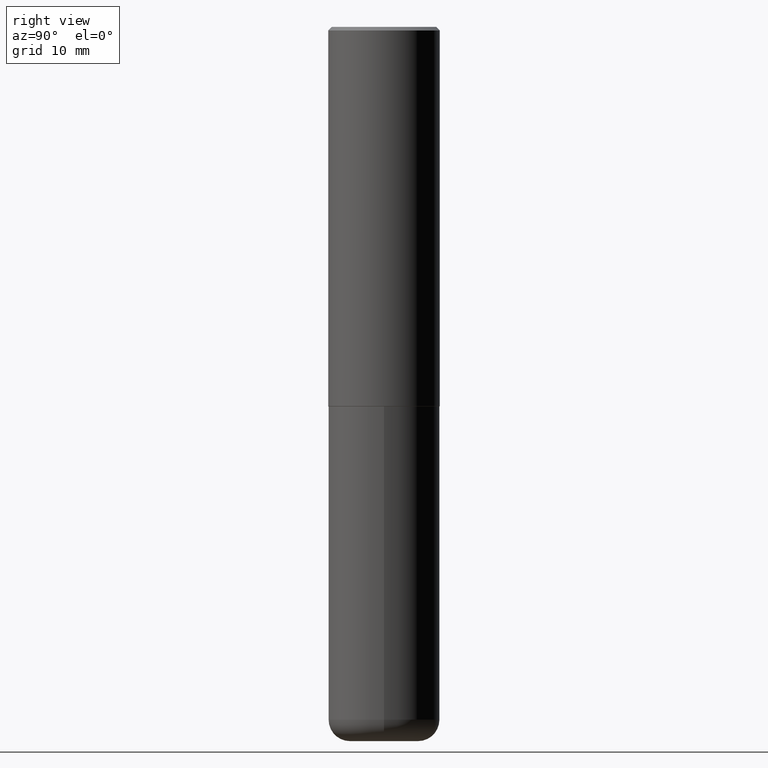
[diagram: clean part render]
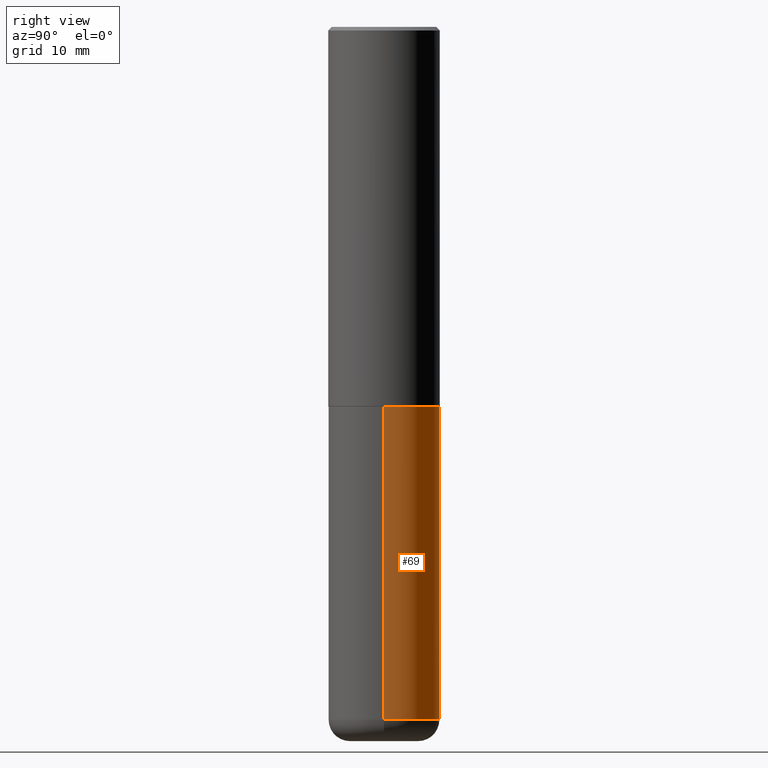
[diagram: same view with one face highlighted and labeled with its STEP entity id]
A machine part, right view. The second image highlights one B-rep face of the part: STEP entity #69.
In plain terms, the highlighted cylindrical surface (partial cylindrical patch) has radius 7.9375 mm, axis along (-0, 0, 1).
Its self-contained STEP definition (entity closure, byte-faithful):
#2 = CIRCLE ( 'NONE', #113, 0.3125000000000000000 ) ;
#43 = CARTESIAN_POINT ( 'NONE',  ( 0.3125000000000000555, -1.572912343148836404E-14, -3.880000000000000338 ) ) ;
#52 = VERTEX_POINT ( 'NONE', #43 ) ;
#60 = CIRCLE ( 'NONE', #272, 0.3125000000000000000 ) ;
#68 = CARTESIAN_POINT ( 'NONE',  ( 5.196621213143414147E-29, -7.419397845041682046E-15, -2.124999999999999556 ) ) ;
#69 = ADVANCED_FACE ( 'NONE', ( #370 ), #267, .T. ) ;
#74 = AXIS2_PLACEMENT_3D ( 'NONE', #200, #172, #292 ) ;
#76 = VERTEX_POINT ( 'NONE', #93 ) ;
#92 = DIRECTION ( 'NONE',  ( -2.445468806185136597E-29, 3.491481338843145583E-15, 1.000000000000000000 ) ) ;
#93 = CARTESIAN_POINT ( 'NONE',  ( -0.3125000000000000000, -8.262726670626231579E-15, -2.124999999999999556 ) ) ;
#106 = DIRECTION ( 'NONE',  ( -2.445468806185136597E-29, 3.491481338843145583E-15, 1.000000000000000000 ) ) ;
#113 = AXIS2_PLACEMENT_3D ( 'NONE', #399, #92, #386 ) ;
#114 = CARTESIAN_POINT ( 'NONE',  ( 0.3125000000000000000, -9.601573681818640393E-15, -2.124999999999999556 ) ) ;
#118 = EDGE_LOOP ( 'NONE', ( #213, #236, #214, #297 ) ) ;
#130 = CARTESIAN_POINT ( 'NONE',  ( -0.3125000000000000555, -1.132650154546109262E-14, -3.880000000000000338 ) ) ;
#148 = CARTESIAN_POINT ( 'NONE',  ( -0.3125000000000000000, 2.220446049250313081E-15, -1.537167215704658232E-29 ) ) ;
#153 = VECTOR ( 'NONE', #224, 39.37007874015748143 ) ;
#172 = DIRECTION ( 'NONE',  ( -2.445468806185136597E-29, 3.491481338843145583E-15, 1.000000000000000000 ) ) ;
#176 = EDGE_CURVE ( 'NONE', #211, #76, #205, .T. ) ;
#179 = VERTEX_POINT ( 'NONE', #114 ) ;
#194 = EDGE_CURVE ( 'NONE', #179, #76, #60, .T. ) ;
#200 = CARTESIAN_POINT ( 'NONE',  ( 0.000000000000000000, 0.000000000000000000, 0.000000000000000000 ) ) ;
#205 = LINE ( 'NONE', #148, #391 ) ;
#211 = VERTEX_POINT ( 'NONE', #130 ) ;
#213 = ORIENTED_EDGE ( 'NONE', *, *, #334, .T. ) ;
#214 = ORIENTED_EDGE ( 'NONE', *, *, #194, .F. ) ;
#224 = DIRECTION ( 'NONE',  ( -2.445468806185136877E-29, 3.491481338843145188E-15, 1.000000000000000000 ) ) ;
#236 = ORIENTED_EDGE ( 'NONE', *, *, #176, .T. ) ;
#267 = CYLINDRICAL_SURFACE ( 'NONE', #74, 0.3125000000000000000 ) ;
#272 = AXIS2_PLACEMENT_3D ( 'NONE', #68, #106, #281 ) ;
#281 = DIRECTION ( 'NONE',  ( 1.000000000000000000, -6.982962677686265133E-15, 0.000000000000000000 ) ) ;
#292 = DIRECTION ( 'NONE',  ( 1.000000000000000000, -6.982962677686266711E-15, 4.876176775795936353E-29 ) ) ;
#297 = ORIENTED_EDGE ( 'NONE', *, *, #417, .F. ) ;
#334 = EDGE_CURVE ( 'NONE', #52, #211, #2, .T. ) ;
#352 = DIRECTION ( 'NONE',  ( -2.445468806185136877E-29, 3.491481338843145188E-15, 1.000000000000000000 ) ) ;
#370 = FACE_OUTER_BOUND ( 'NONE', #118, .T. ) ;
#386 = DIRECTION ( 'NONE',  ( 1.000000000000000000, -6.982962677686269077E-15, 0.000000000000000000 ) ) ;
#388 = LINE ( 'NONE', #389, #153 ) ;
#389 = CARTESIAN_POINT ( 'NONE',  ( 0.3125000000000000000, -2.182175836776958347E-15, 1.523805242436230075E-29 ) ) ;
#391 = VECTOR ( 'NONE', #352, 39.37007874015748143 ) ;
#399 = CARTESIAN_POINT ( 'NONE',  ( 9.488418967998330085E-29, -1.354694759471140570E-14, -3.880000000000000338 ) ) ;
#417 = EDGE_CURVE ( 'NONE', #52, #179, #388, .T. ) ;